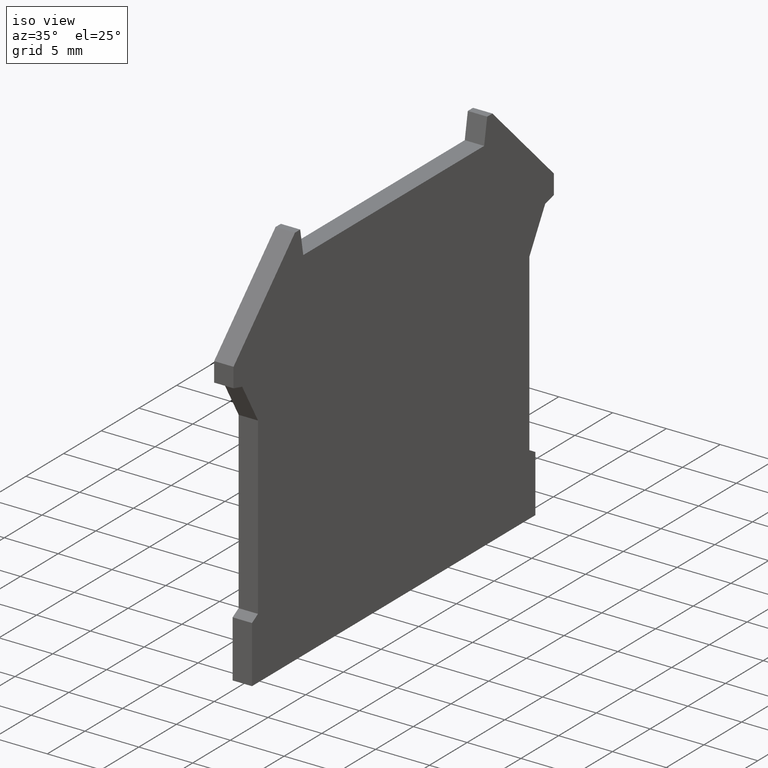
[diagram: clean part render]
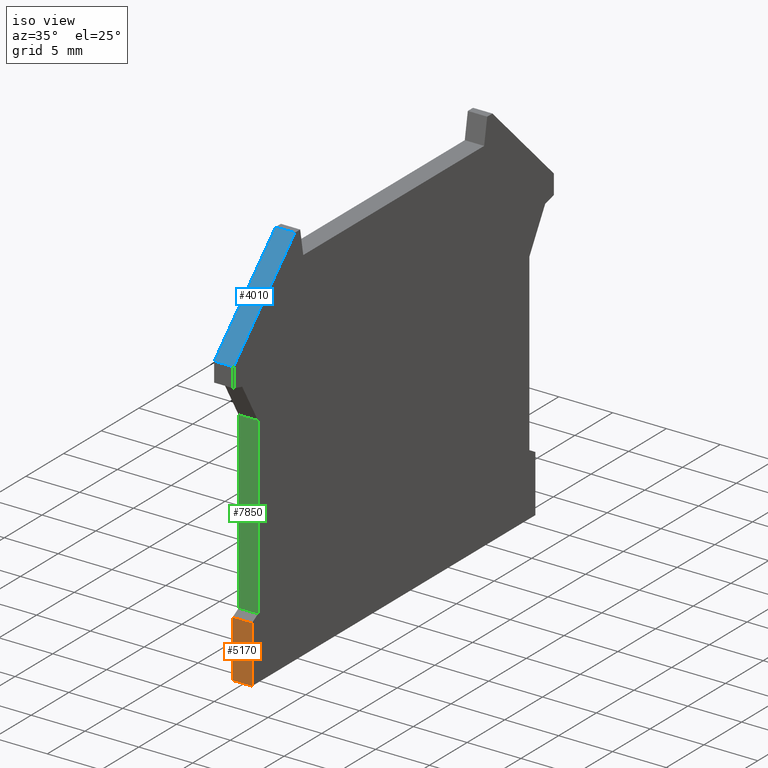
[diagram: same view with three faces highlighted in distinct colors, each labeled with its STEP entity id]
A machine part, iso view with three faces highlighted in distinct colors.
Their STEP definitions:

[orange] entity #5170 — the highlighted planar face has unit normal (-0, -1, -0).
#200=CARTESIAN_POINT('',(10.7443975377984,233.908100844792,-3.3));
#210=VERTEX_POINT('',#200);
#240=CARTESIAN_POINT('',(10.7443975377984,0.,-3.3));
#250=DIRECTION('',(0.,1.,0.));
#260=VECTOR('',#250,1.);
#270=LINE('',#240,#260);
#280=CARTESIAN_POINT('',(10.7443975377984,228.608100844792,-3.3));
#290=VERTEX_POINT('',#280);
#300=EDGE_CURVE('',#290,#210,#270,.T.);
#2830=CARTESIAN_POINT('',(10.7443975377984,228.608100844792,-1.5));
#2840=VERTEX_POINT('',#2830);
#2870=CARTESIAN_POINT('',(10.7443975377984,0.,-1.5));
#2880=DIRECTION('',(0.,-1.,0.));
#2890=VECTOR('',#2880,1.);
#2900=LINE('',#2870,#2890);
#2910=CARTESIAN_POINT('',(10.7443975377984,233.908100844792,-1.5));
#2920=VERTEX_POINT('',#2910);
#2930=EDGE_CURVE('',#2920,#2840,#2900,.T.);
#4960=CARTESIAN_POINT('',(10.7443975377984,233.330750575602,0.));
#4970=DIRECTION('',(-1.,0.,0.));
#4980=DIRECTION('',(0.,1.,0.));
#4990=AXIS2_PLACEMENT_3D('',#4960,#4970,#4980);
#5000=PLANE('',#4990);
#5010=ORIENTED_EDGE('',*,*,#2930,.F.);
#5020=CARTESIAN_POINT('',(10.7443975377984,228.608100844792,0.));
#5030=DIRECTION('',(0.,0.,-1.));
#5040=VECTOR('',#5030,1.);
#5050=LINE('',#5020,#5040);
#5060=EDGE_CURVE('',#2840,#290,#5050,.T.);
#5070=ORIENTED_EDGE('',*,*,#5060,.F.);
#5080=ORIENTED_EDGE('',*,*,#300,.F.);
#5090=CARTESIAN_POINT('',(10.7443975377984,233.908100844792,0.));
#5100=DIRECTION('',(0.,0.,1.));
#5110=VECTOR('',#5100,1.);
#5120=LINE('',#5090,#5110);
#5130=EDGE_CURVE('',#210,#2920,#5120,.T.);
#5140=ORIENTED_EDGE('',*,*,#5130,.F.);
#5150=EDGE_LOOP('',(#5140,#5080,#5070,#5010));
#5160=FACE_OUTER_BOUND('',#5150,.T.);
#5170=ADVANCED_FACE('',(#5160),#5000,.T.);

[blue] entity #4010 — the highlighted planar face has unit normal (-0, -0.7071, 0.7071).
#1320=CARTESIAN_POINT('',(16.4443975377984,264.508100844792,-3.3));
#1330=VERTEX_POINT('',#1320);
#1360=CARTESIAN_POINT('',(-248.063703306992,0.,-3.3));
#1370=DIRECTION('',(0.707106781186546,0.707106781186549,0.));
#1380=VECTOR('',#1370,1.);
#1390=LINE('',#1360,#1380);
#1400=CARTESIAN_POINT('',(8.2943975377984,256.358100844792,-3.3));
#1410=VERTEX_POINT('',#1400);
#1420=EDGE_CURVE('',#1410,#1330,#1390,.T.);
#1870=CARTESIAN_POINT('',(16.4443975377986,264.508100844792,-1.5));
#1880=VERTEX_POINT('',#1870);
#3310=CARTESIAN_POINT('',(8.2943975377984,256.358100844792,-1.5));
#3320=VERTEX_POINT('',#3310);
#3350=CARTESIAN_POINT('',(-248.063703306992,0.,-1.5));
#3360=DIRECTION('',(-0.707106781186546,-0.707106781186549,0.));
#3370=VECTOR('',#3360,1.);
#3380=LINE('',#3350,#3370);
#3390=EDGE_CURVE('',#1880,#3320,#3380,.T.);
#3800=CARTESIAN_POINT('',(16.4443975377984,264.508100844792,0.));
#3810=DIRECTION('',(-0.707106781186549,0.707106781186546,0.));
#3820=DIRECTION('',(0.707106781186546,0.707106781186549,0.));
#3830=AXIS2_PLACEMENT_3D('',#3800,#3810,#3820);
#3840=PLANE('',#3830);
#3850=CARTESIAN_POINT('',(16.4443975377984,264.508100844792,0.));
#3860=DIRECTION('',(0.,0.,1.));
#3870=VECTOR('',#3860,1.);
#3880=LINE('',#3850,#3870);
#3890=EDGE_CURVE('',#1330,#1880,#3880,.T.);
#3900=ORIENTED_EDGE('',*,*,#3890,.F.);
#3910=ORIENTED_EDGE('',*,*,#3390,.F.);
#3920=CARTESIAN_POINT('',(8.2943975377984,256.358100844792,0.));
#3930=DIRECTION('',(0.,0.,-1.));
#3940=VECTOR('',#3930,1.);
#3950=LINE('',#3920,#3940);
#3960=EDGE_CURVE('',#3320,#1410,#3950,.T.);
#3970=ORIENTED_EDGE('',*,*,#3960,.F.);
#3980=ORIENTED_EDGE('',*,*,#1420,.F.);
#3990=EDGE_LOOP('',(#3980,#3970,#3910,#3900));
#4000=FACE_OUTER_BOUND('',#3990,.T.);
#4010=ADVANCED_FACE('',(#4000),#3840,.T.);

[green] entity #7850 — the highlighted planar face has unit normal (-0, -1, -0).
#60=CARTESIAN_POINT('',(11.5443975377984,0.,-3.3));
#70=DIRECTION('',(0.,-1.,0.));
#80=VECTOR('',#70,1.);
#90=LINE('',#60,#80);
#100=CARTESIAN_POINT('',(11.5443975377984,250.608100844792,-3.3));
#110=VERTEX_POINT('',#100);
#120=CARTESIAN_POINT('',(11.5443975377984,234.369981060144,-3.3));
#130=VERTEX_POINT('',#120);
#140=EDGE_CURVE('',#110,#130,#90,.T.);
#2990=CARTESIAN_POINT('',(11.5443975377984,234.369981060144,-1.5));
#3000=VERTEX_POINT('',#2990);
#3030=CARTESIAN_POINT('',(11.5443975377984,0.,-1.5));
#3040=DIRECTION('',(0.,-1.,0.));
#3050=VECTOR('',#3040,1.);
#3060=LINE('',#3030,#3050);
#3070=CARTESIAN_POINT('',(11.5443975377984,250.608100844792,-1.5));
#3080=VERTEX_POINT('',#3070);
#3090=EDGE_CURVE('',#3080,#3000,#3060,.T.);
#5540=CARTESIAN_POINT('',(11.5443975377984,250.608100844792,0.));
#5550=DIRECTION('',(0.,0.,1.));
#5560=VECTOR('',#5550,1.);
#5570=LINE('',#5540,#5560);
#5580=EDGE_CURVE('',#110,#3080,#5570,.T.);
#7690=CARTESIAN_POINT('',(11.5443975377984,250.608100844792,0.));
#7700=DIRECTION('',(-1.,0.,0.));
#7710=DIRECTION('',(0.,1.,0.));
#7720=AXIS2_PLACEMENT_3D('',#7690,#7700,#7710);
#7730=PLANE('',#7720);
#7740=CARTESIAN_POINT('',(11.5443975377984,234.369981060144,0.));
#7750=DIRECTION('',(0.,0.,-1.));
#7760=VECTOR('',#7750,1.);
#7770=LINE('',#7740,#7760);
#7780=EDGE_CURVE('',#3000,#130,#7770,.T.);
#7790=ORIENTED_EDGE('',*,*,#7780,.F.);
#7800=ORIENTED_EDGE('',*,*,#140,.T.);
#7810=ORIENTED_EDGE('',*,*,#5580,.F.);
#7820=ORIENTED_EDGE('',*,*,#3090,.F.);
#7830=EDGE_LOOP('',(#7820,#7810,#7800,#7790));
#7840=FACE_OUTER_BOUND('',#7830,.T.);
#7850=ADVANCED_FACE('',(#7840),#7730,.T.);